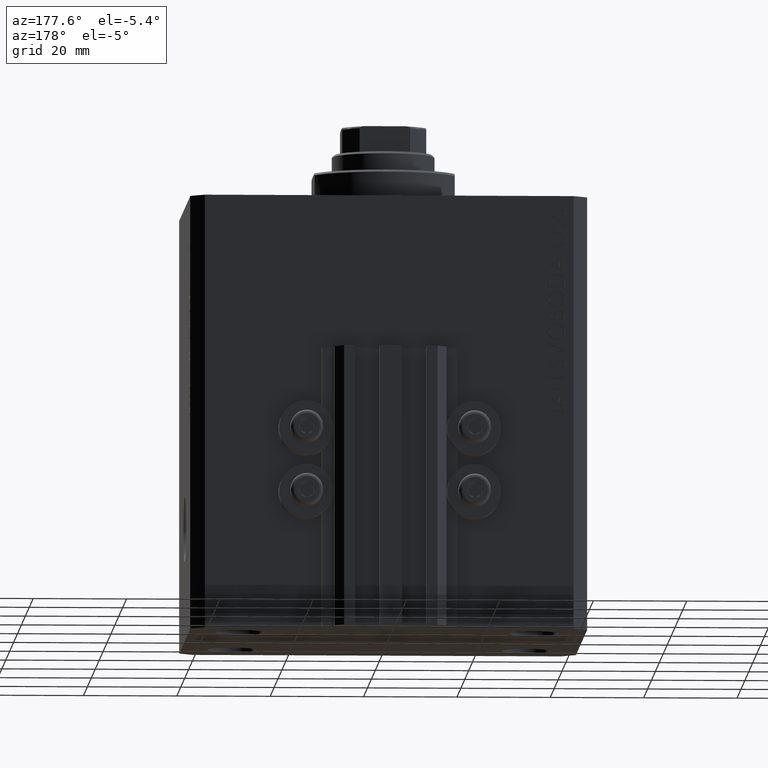
[diagram: clean part render]
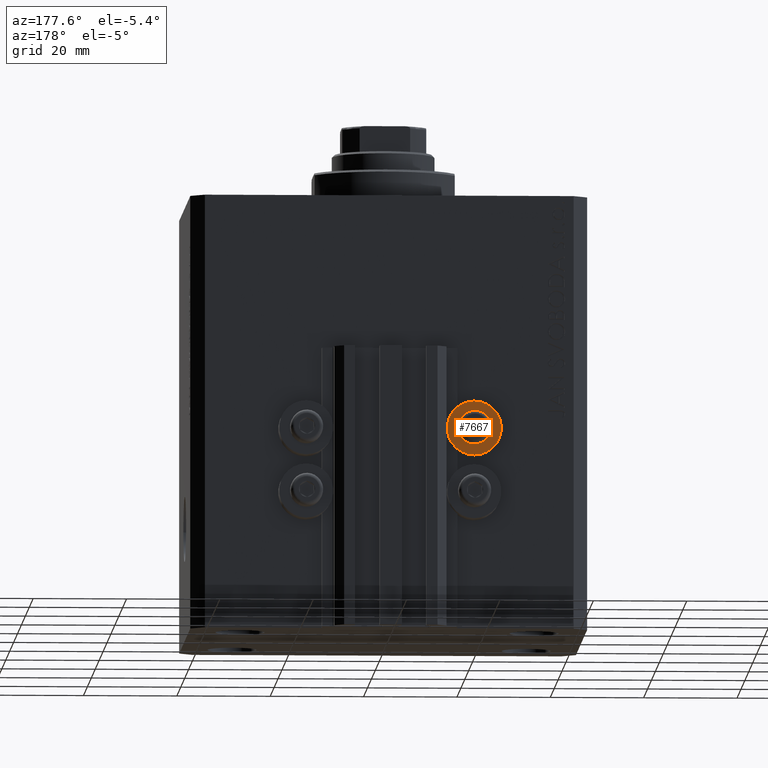
[diagram: same view with one face highlighted and labeled with its STEP entity id]
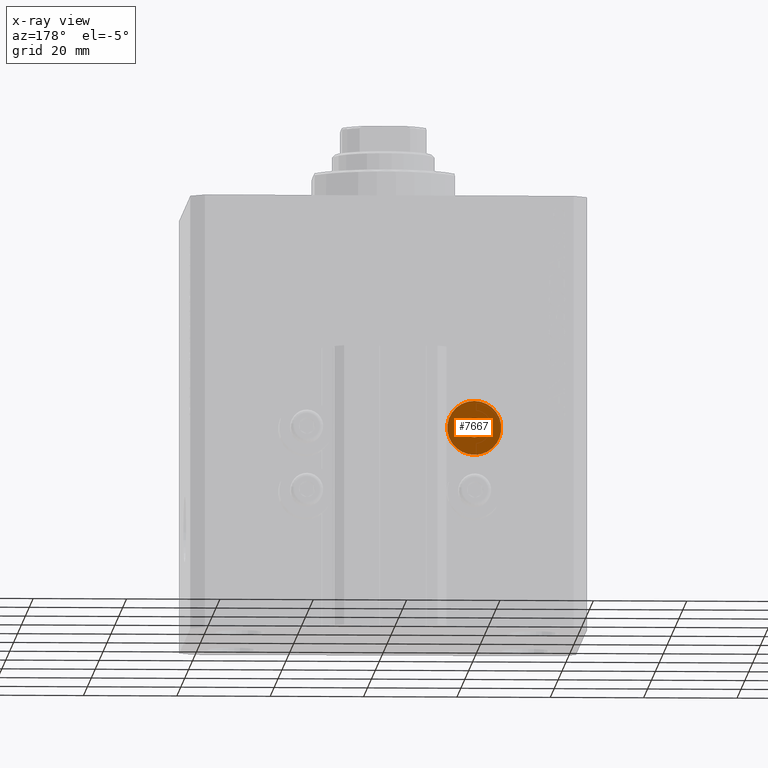
[diagram: x-ray of the same camera — body ghosted, the highlighted face saturated]
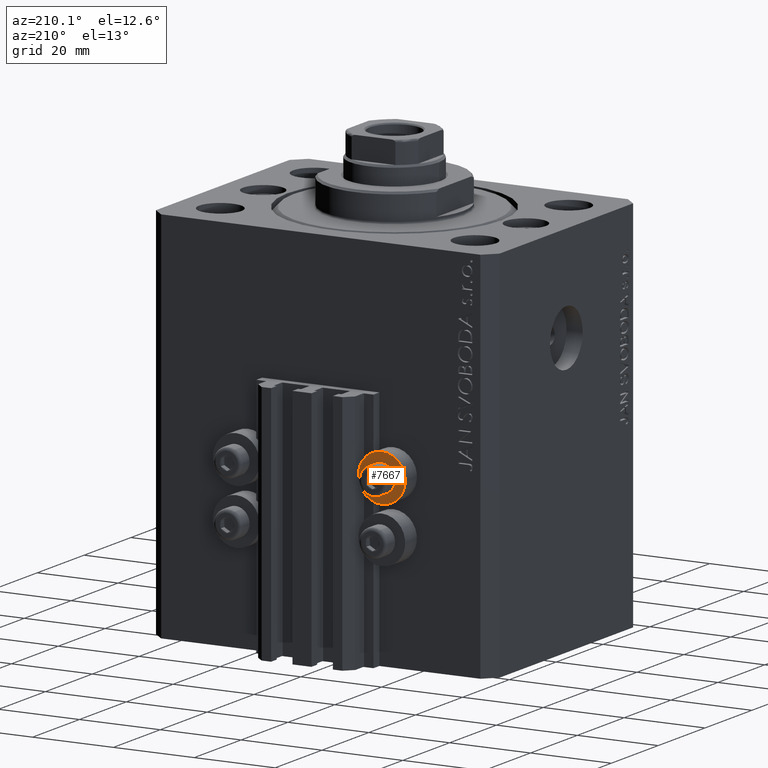
[diagram: same view with one face highlighted and labeled with its STEP entity id]
A machine part, auxiliary view. The second image highlights one B-rep face of the part: STEP entity #7667.
The next image is the same camera in x-ray: the body ghosted, the highlighted face saturated — about 0% of this face is hidden behind the body in this view.
A second angle (auxiliary view) of the same face is appended — the face is thin or edge-on in the first view.
In plain terms, the highlighted planar face has unit normal (0, -1, 0).
Its self-contained STEP definition (entity closure, byte-faithful):
#985 = ORIENTED_EDGE ( 'NONE', *, *, #2427, .T. ) ;
#2427 = EDGE_CURVE ( 'NONE', #10146, #42609, #33305, .T. ) ;
#5615 = DIRECTION ( 'NONE',  ( 0.000000000000000000, 0.000000000000000000, 1.000000000000000000 ) ) ;
#6879 = DIRECTION ( 'NONE',  ( 0.000000000000000000, 0.000000000000000000, 1.000000000000000000 ) ) ;
#7667 = ADVANCED_FACE ( 'NONE', ( #33100, #40021 ), #21866, .F. ) ;
#8231 = EDGE_LOOP ( 'NONE', ( #12299, #985 ) ) ;
#8302 = CARTESIAN_POINT ( 'NONE',  ( -18.00000000000000355, 36.49999999996099120, -44.60000000000000142 ) ) ;
#10146 = VERTEX_POINT ( 'NONE', #43640 ) ;
#12299 = ORIENTED_EDGE ( 'NONE', *, *, #42504, .T. ) ;
#12546 = DIRECTION ( 'NONE',  ( 0.000000000000000000, 0.000000000000000000, 1.000000000000000000 ) ) ;
#12820 = CIRCLE ( 'NONE', #46344, 5.799999999999999822 ) ;
#13225 = EDGE_CURVE ( 'NONE', #46563, #38985, #22195, .T. ) ;
#13997 = DIRECTION ( 'NONE',  ( 0.000000000000000000, -1.000000000000000000, 0.000000000000000000 ) ) ;
#16704 = AXIS2_PLACEMENT_3D ( 'NONE', #29264, #13997, #40254 ) ;
#16892 = CIRCLE ( 'NONE', #35187, 2.000000000000001776 ) ;
#16994 = ORIENTED_EDGE ( 'NONE', *, *, #45815, .F. ) ;
#17077 = DIRECTION ( 'NONE',  ( 0.000000000000000000, 1.000000000000000000, 0.000000000000000000 ) ) ;
#20768 = DIRECTION ( 'NONE',  ( 0.000000000000000000, 0.000000000000000000, 1.000000000000000000 ) ) ;
#20999 = CARTESIAN_POINT ( 'NONE',  ( -18.00000000000000355, 36.49999999996099120, -50.39999999999999858 ) ) ;
#21866 = PLANE ( 'NONE',  #16704 ) ;
#21926 = DIRECTION ( 'NONE',  ( -0.000000000000000000, 1.000000000000000000, -0.000000000000000000 ) ) ;
#22195 = CIRCLE ( 'NONE', #24342, 2.000000000000001776 ) ;
#24342 = AXIS2_PLACEMENT_3D ( 'NONE', #37629, #45006, #12546 ) ;
#25612 = CARTESIAN_POINT ( 'NONE',  ( -18.00000000000000355, 36.49999999996099120, -52.40000000000000568 ) ) ;
#29264 = CARTESIAN_POINT ( 'NONE',  ( -12.20000000000000284, 36.49999999996099120, -50.39999999999999858 ) ) ;
#29686 = CARTESIAN_POINT ( 'NONE',  ( -18.00000000000000355, 36.49999999996099120, -48.39999999999999858 ) ) ;
#30247 = AXIS2_PLACEMENT_3D ( 'NONE', #20999, #39153, #20768 ) ;
#30902 = EDGE_LOOP ( 'NONE', ( #38521, #16994 ) ) ;
#33100 = FACE_BOUND ( 'NONE', #30902, .T. ) ;
#33305 = CIRCLE ( 'NONE', #30247, 5.799999999999999822 ) ;
#35187 = AXIS2_PLACEMENT_3D ( 'NONE', #38321, #17077, #5615 ) ;
#37629 = CARTESIAN_POINT ( 'NONE',  ( -18.00000000000000355, 36.49999999996099120, -50.39999999999999858 ) ) ;
#38321 = CARTESIAN_POINT ( 'NONE',  ( -18.00000000000000355, 36.49999999996099120, -50.39999999999999858 ) ) ;
#38521 = ORIENTED_EDGE ( 'NONE', *, *, #13225, .F. ) ;
#38985 = VERTEX_POINT ( 'NONE', #25612 ) ;
#39153 = DIRECTION ( 'NONE',  ( -0.000000000000000000, 1.000000000000000000, -0.000000000000000000 ) ) ;
#40021 = FACE_OUTER_BOUND ( 'NONE', #8231, .T. ) ;
#40254 = DIRECTION ( 'NONE',  ( 0.000000000000000000, -0.000000000000000000, -1.000000000000000000 ) ) ;
#42504 = EDGE_CURVE ( 'NONE', #42609, #10146, #12820, .T. ) ;
#42609 = VERTEX_POINT ( 'NONE', #8302 ) ;
#43640 = CARTESIAN_POINT ( 'NONE',  ( -18.00000000000000355, 36.49999999996099120, -56.20000000000000284 ) ) ;
#45006 = DIRECTION ( 'NONE',  ( 0.000000000000000000, 1.000000000000000000, 0.000000000000000000 ) ) ;
#45559 = CARTESIAN_POINT ( 'NONE',  ( -18.00000000000000355, 36.49999999996099120, -50.39999999999999858 ) ) ;
#45815 = EDGE_CURVE ( 'NONE', #38985, #46563, #16892, .T. ) ;
#46344 = AXIS2_PLACEMENT_3D ( 'NONE', #45559, #21926, #6879 ) ;
#46563 = VERTEX_POINT ( 'NONE', #29686 ) ;